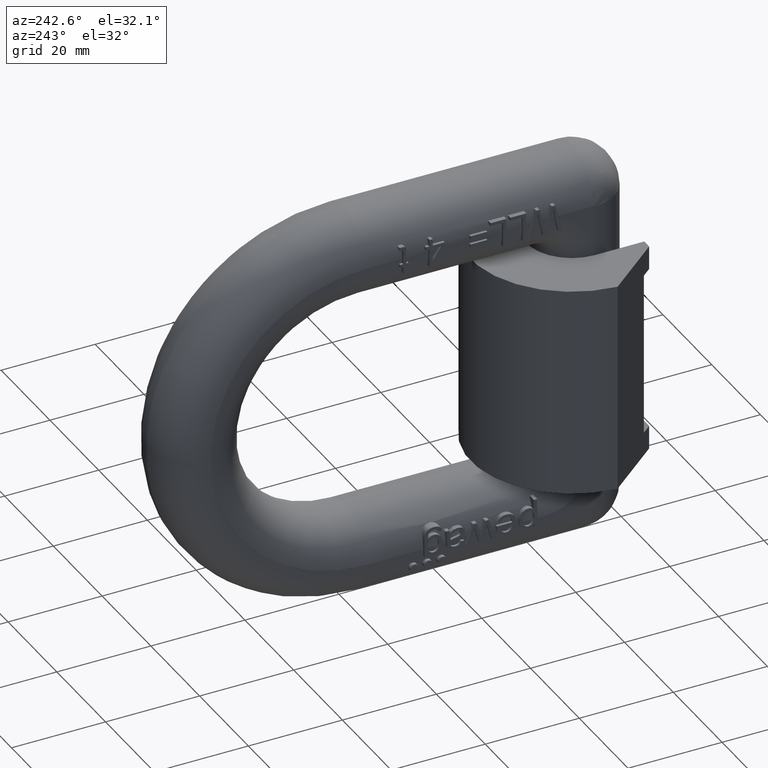
[diagram: clean part render]
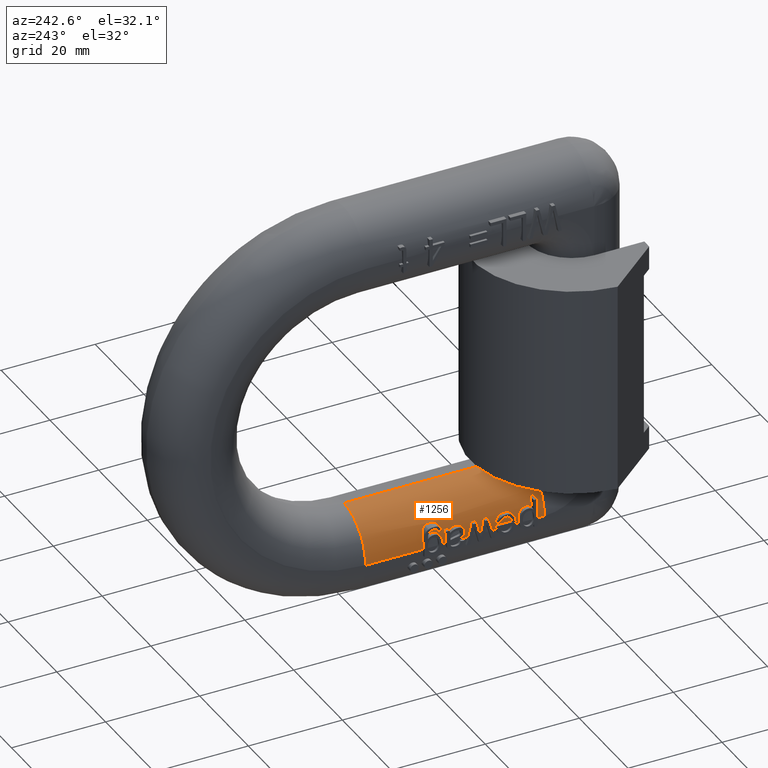
[diagram: same view with one face highlighted and labeled with its STEP entity id]
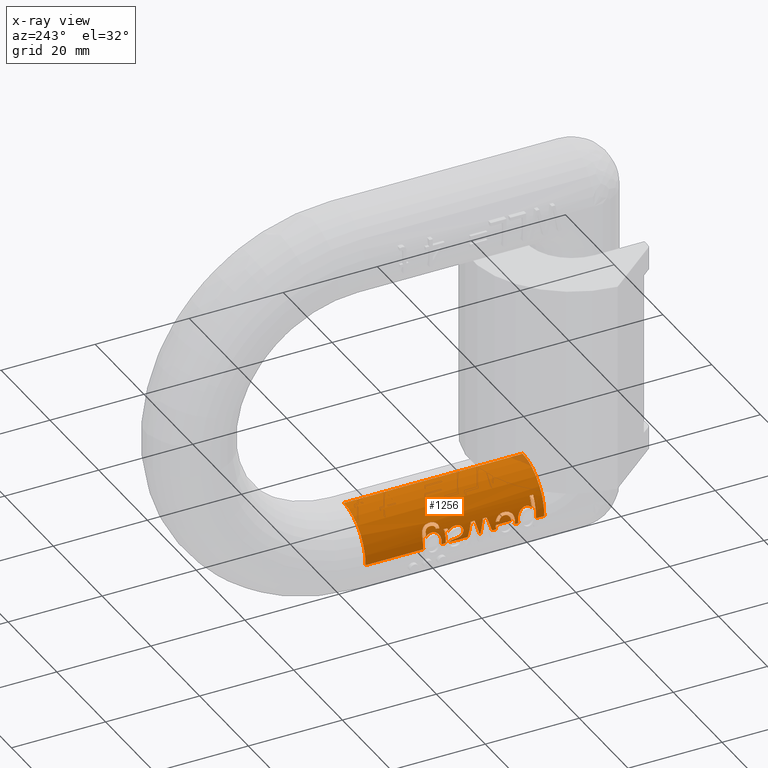
[diagram: x-ray of the same camera — body ghosted, the highlighted face saturated]
A machine part, auxiliary view. The second image highlights one B-rep face of the part: STEP entity #1256.
The next image is the same camera in x-ray: the body ghosted, the highlighted face saturated — about 1% of this face is hidden behind the body in this view.
In plain terms, the highlighted cylindrical surface (partial cylindrical patch) has radius 8.9 mm, axis along (0, -1, -0).
Its self-contained STEP definition (entity closure, byte-faithful):
#235=ELLIPSE('',#8851,61.93348202659,8.9);
#236=ELLIPSE('',#8852,9.33908652959196,8.9);
#237=ELLIPSE('',#8853,9.21864043009322,8.9);
#238=ELLIPSE('',#8854,9.13680175470735,8.9);
#239=ELLIPSE('',#8855,9.21336288679364,8.9);
#240=ELLIPSE('',#8856,9.32180664504699,8.9);
#241=ELLIPSE('',#8857,74.1699170217813,8.9);
#332=B_SPLINE_CURVE_WITH_KNOTS('',3,(#12089,#12090,#12091,#12092,#12093,
#12094,#12095,#12096),.UNSPECIFIED.,.F.,.F.,(4,2,2,4),(0.,0.250000000000001,
0.500000000000002,1.),.UNSPECIFIED.);
#333=B_SPLINE_CURVE_WITH_KNOTS('',3,(#12098,#12099,#12100,#12101,#12102,
#12103,#12104,#12105,#12106,#12107,#12108,#12109,#12110),.UNSPECIFIED.,
 .F.,.F.,(4,3,3,3,4),(0.,0.248697880491787,0.494178364665057,0.791736109064426,
1.),.UNSPECIFIED.);
#334=B_SPLINE_CURVE_WITH_KNOTS('',3,(#12112,#12113,#12114,#12115,#12116,
#12117,#12118,#12119,#12120,#12121),.UNSPECIFIED.,.F.,.F.,(4,3,3,4),(0.,
0.430337284255991,0.754018457427919,1.),.UNSPECIFIED.);
#335=B_SPLINE_CURVE_WITH_KNOTS('',3,(#12125,#12126,#12127,#12128,#12129,
#12130,#12131,#12132,#12133,#12134),.UNSPECIFIED.,.F.,.F.,(4,3,3,4),(0.,
0.274135948176124,0.674560147402993,1.),.UNSPECIFIED.);
#336=B_SPLINE_CURVE_WITH_KNOTS('',3,(#12136,#12137,#12138,#12139,#12140,
#12141,#12142,#12143,#12144,#12145,#12146,#12147,#12148,#12149,#12150,#12151,
#12152,#12153,#12154),.UNSPECIFIED.,.F.,.F.,(4,3,3,3,3,3,4),(0.,0.168858614757021,
0.307700460090712,0.447905580202655,0.646046400404949,0.866531902761358,
1.),.UNSPECIFIED.);
#337=B_SPLINE_CURVE_WITH_KNOTS('',3,(#12156,#12157,#12158,#12159,#12160,
#12161,#12162,#12163,#12164,#12165),.UNSPECIFIED.,.F.,.F.,(4,3,3,4),(0.,
0.360395097083407,0.678916789615652,1.),.UNSPECIFIED.);
#338=B_SPLINE_CURVE_WITH_KNOTS('',3,(#12167,#12168,#12169,#12170,#12171,
#12172,#12173,#12174,#12175,#12176,#12177,#12178,#12179,#12180,#12181,#12182,
#12183,#12184,#12185,#12186,#12187,#12188,#12189,#12190,#12191,#12192,#12193,
#12194),.UNSPECIFIED.,.F.,.F.,(4,3,3,3,3,3,3,3,3,4),(0.,0.178485455822983,
0.359186002753661,0.486417113436246,0.584802376793435,0.68298578796122,
0.787826060058585,0.879032056485584,0.9699001153783,1.),.UNSPECIFIED.);
#339=B_SPLINE_CURVE_WITH_KNOTS('',3,(#12198,#12199,#12200,#12201,#12202,
#12203,#12204),.UNSPECIFIED.,.F.,.F.,(4,3,4),(0.,0.421624354735253,1.),
 .UNSPECIFIED.);
#340=B_SPLINE_CURVE_WITH_KNOTS('',3,(#12206,#12207,#12208,#12209,#12210,
#12211,#12212,#12213,#12214,#12215),.UNSPECIFIED.,.F.,.F.,(4,3,3,4),(0.,
0.493631060329936,0.745840350518706,1.),.UNSPECIFIED.);
#341=B_SPLINE_CURVE_WITH_KNOTS('',3,(#12219,#12220,#12221,#12222,#12223,
#12224,#12225,#12226,#12227,#12228),.UNSPECIFIED.,.F.,.F.,(4,3,3,4),(0.,
0.263864271548027,0.52782859241689,1.),.UNSPECIFIED.);
#342=B_SPLINE_CURVE_WITH_KNOTS('',3,(#12230,#12231,#12232,#12233,#12234,
#12235,#12236,#12237,#12238,#12239),.UNSPECIFIED.,.F.,.F.,(4,3,3,4),(0.,
0.284756469951146,0.569036882238634,1.),.UNSPECIFIED.);
#343=B_SPLINE_CURVE_WITH_KNOTS('',3,(#12241,#12242,#12243,#12244,#12245,
#12246,#12247,#12248,#12249,#12250,#12251,#12252,#12253,#12254,#12255,#12256,
#12257,#12258,#12259,#12260,#12261,#12262,#12263,#12264,#12265),
 .UNSPECIFIED.,.F.,.F.,(4,3,3,3,3,3,3,3,4),(0.,0.108008235614619,0.215256218109179,
0.339019673596074,0.448275732337749,0.561639631039315,0.711834015155023,
0.937060876466547,1.),.UNSPECIFIED.);
#344=B_SPLINE_CURVE_WITH_KNOTS('',3,(#12267,#12268,#12269,#12270,#12271,
#12272,#12273,#12274,#12275,#12276),.UNSPECIFIED.,.F.,.F.,(4,3,3,4),(0.,
0.261001662313728,0.522016043196753,1.),.UNSPECIFIED.);
#345=B_SPLINE_CURVE_WITH_KNOTS('',3,(#12278,#12279,#12280,#12281,#12282,
#12283,#12284,#12285,#12286,#12287),.UNSPECIFIED.,.F.,.F.,(4,3,3,4),(0.,
0.26200340298952,0.524078096755876,1.),.UNSPECIFIED.);
#346=B_SPLINE_CURVE_WITH_KNOTS('',3,(#12289,#12290,#12291,#12292,#12293,
#12294,#12295,#12296,#12297,#12298),.UNSPECIFIED.,.F.,.F.,(4,3,3,4),(0.,
0.331326683257196,0.665237069001684,1.),.UNSPECIFIED.);
#347=B_SPLINE_CURVE_WITH_KNOTS('',3,(#12300,#12301,#12302,#12303,#12304,
#12305,#12306,#12307,#12308,#12309),.UNSPECIFIED.,.F.,.F.,(4,3,3,4),(0.,
0.336122544874488,0.667728324385305,1.),.UNSPECIFIED.);
#348=B_SPLINE_CURVE_WITH_KNOTS('',3,(#12311,#12312,#12313,#12314),
 .UNSPECIFIED.,.F.,.F.,(4,4),(0.,1.),.UNSPECIFIED.);
#349=B_SPLINE_CURVE_WITH_KNOTS('',3,(#12330,#12331,#12332,#12333),
 .UNSPECIFIED.,.F.,.F.,(4,4),(0.,1.),.UNSPECIFIED.);
#350=B_SPLINE_CURVE_WITH_KNOTS('',3,(#12337,#12338,#12339,#12340,#12341,
#12342,#12343,#12344,#12345,#12346),.UNSPECIFIED.,.F.,.F.,(4,3,3,4),(0.,
0.299775730212566,0.754084692678847,1.),.UNSPECIFIED.);
#351=B_SPLINE_CURVE_WITH_KNOTS('',3,(#12348,#12349,#12350,#12351,#12352,
#12353,#12354,#12355,#12356,#12357,#12358,#12359,#12360,#12361,#12362,#12363),
 .UNSPECIFIED.,.F.,.F.,(4,3,3,3,3,4),(0.,0.211617103165979,0.421673840282327,
0.664731961057905,0.916767024037148,1.),.UNSPECIFIED.);
#352=B_SPLINE_CURVE_WITH_KNOTS('',3,(#12365,#12366,#12367,#12368,#12369,
#12370,#12371,#12372,#12373,#12374),.UNSPECIFIED.,.F.,.F.,(4,3,3,4),(0.,
0.294034769433422,0.588696196756027,1.),.UNSPECIFIED.);
#353=B_SPLINE_CURVE_WITH_KNOTS('',3,(#12378,#12379,#12380,#12381,#12382,
#12383,#12384,#12385,#12386,#12387),.UNSPECIFIED.,.F.,.F.,(4,3,3,4),(0.,
0.269830830133682,0.756390291648704,1.),.UNSPECIFIED.);
#354=B_SPLINE_CURVE_WITH_KNOTS('',3,(#12389,#12390,#12391,#12392,#12393,
#12394,#12395,#12396,#12397,#12398,#12399,#12400,#12401,#12402,#12403,#12404),
 .UNSPECIFIED.,.F.,.F.,(4,3,3,3,3,4),(0.,0.208070152032161,0.415661220403148,
0.713003631775161,0.915949178629303,1.),.UNSPECIFIED.);
#355=B_SPLINE_CURVE_WITH_KNOTS('',3,(#12406,#12407,#12408,#12409,#12410,
#12411,#12412,#12413,#12414,#12415,#12416,#12417,#12418),.UNSPECIFIED.,
 .F.,.F.,(4,3,3,3,4),(0.,0.359290445480422,0.691721797651223,0.947044335466171,
1.),.UNSPECIFIED.);
#356=B_SPLINE_CURVE_WITH_KNOTS('',3,(#12419,#12420,#12421,#12422,#12423,
#12424,#12425,#12426,#12427,#12428,#12429,#12430,#12431),.UNSPECIFIED.,
 .F.,.F.,(4,3,3,3,4),(0.,0.205453920719586,0.409479874008295,0.709159499343931,
1.),.UNSPECIFIED.);
#357=B_SPLINE_CURVE_WITH_KNOTS('',3,(#12433,#12434,#12435,#12436,#12437,
#12438,#12439,#12440,#12441,#12442,#12443,#12444,#12445),.UNSPECIFIED.,
 .F.,.F.,(4,3,3,3,4),(0.,0.27546270381724,0.548212343231061,0.864404932752127,
1.),.UNSPECIFIED.);
#358=B_SPLINE_CURVE_WITH_KNOTS('',3,(#12447,#12448,#12449,#12450,#12451,
#12452,#12453,#12454,#12455,#12456),.UNSPECIFIED.,.F.,.F.,(4,3,3,4),(0.,
0.26158096952331,0.523120782220585,1.),.UNSPECIFIED.);
#1256=ADVANCED_FACE('',(#1769),#1677,.T.);
#1677=CYLINDRICAL_SURFACE('',#8859,8.9);
#1769=FACE_OUTER_BOUND('',#2213,.T.);
#2213=EDGE_LOOP('',(#3142,#3143,#3144,#3145,#3146,#3147,#3148,#3149,#3150,
#3151,#3152,#3153,#3154,#3155,#3156,#3157,#3158,#3159,#3160,#3161,#3162,
#3163,#3164,#3165,#3166,#3167,#3168,#3169,#3170,#3171,#3172,#3173,#3174,
#3175,#3176,#3177,#3178,#3179,#3180,#3181,#3182,#3183,#3184,#3185,#3186,
#3187,#3188,#3189,#3190,#3191,#3192));
#2697=CIRCLE('',#8848,8.9);
#2698=CIRCLE('',#8849,8.9);
#2699=CIRCLE('',#8850,8.9);
#2700=CIRCLE('',#8858,8.9);
#3142=ORIENTED_EDGE('',*,*,#6453,.F.);
#3143=ORIENTED_EDGE('',*,*,#6258,.F.);
#3144=ORIENTED_EDGE('',*,*,#6454,.T.);
#3145=ORIENTED_EDGE('',*,*,#6227,.F.);
#3146=ORIENTED_EDGE('',*,*,#6455,.F.);
#3147=ORIENTED_EDGE('',*,*,#6425,.F.);
#3148=ORIENTED_EDGE('',*,*,#6456,.F.);
#3149=ORIENTED_EDGE('',*,*,#6457,.F.);
#3150=ORIENTED_EDGE('',*,*,#6458,.F.);
#3151=ORIENTED_EDGE('',*,*,#6459,.F.);
#3152=ORIENTED_EDGE('',*,*,#6460,.F.);
#3153=ORIENTED_EDGE('',*,*,#6461,.F.);
#3154=ORIENTED_EDGE('',*,*,#6462,.F.);
#3155=ORIENTED_EDGE('',*,*,#6463,.F.);
#3156=ORIENTED_EDGE('',*,*,#6464,.F.);
#3157=ORIENTED_EDGE('',*,*,#6465,.F.);
#3158=ORIENTED_EDGE('',*,*,#6466,.F.);
#3159=ORIENTED_EDGE('',*,*,#6467,.F.);
#3160=ORIENTED_EDGE('',*,*,#6468,.F.);
#3161=ORIENTED_EDGE('',*,*,#6469,.F.);
#3162=ORIENTED_EDGE('',*,*,#6470,.F.);
#3163=ORIENTED_EDGE('',*,*,#6471,.F.);
#3164=ORIENTED_EDGE('',*,*,#6472,.F.);
#3165=ORIENTED_EDGE('',*,*,#6473,.F.);
#3166=ORIENTED_EDGE('',*,*,#6474,.F.);
#3167=ORIENTED_EDGE('',*,*,#6475,.F.);
#3168=ORIENTED_EDGE('',*,*,#6444,.F.);
#3169=ORIENTED_EDGE('',*,*,#6476,.F.);
#3170=ORIENTED_EDGE('',*,*,#6477,.F.);
#3171=ORIENTED_EDGE('',*,*,#6478,.F.);
#3172=ORIENTED_EDGE('',*,*,#6479,.F.);
#3173=ORIENTED_EDGE('',*,*,#6480,.F.);
#3174=ORIENTED_EDGE('',*,*,#6481,.F.);
#3175=ORIENTED_EDGE('',*,*,#6482,.F.);
#3176=ORIENTED_EDGE('',*,*,#6483,.F.);
#3177=ORIENTED_EDGE('',*,*,#6428,.F.);
#3178=ORIENTED_EDGE('',*,*,#6484,.F.);
#3179=ORIENTED_EDGE('',*,*,#6485,.F.);
#3180=ORIENTED_EDGE('',*,*,#6486,.F.);
#3181=ORIENTED_EDGE('',*,*,#6487,.F.);
#3182=ORIENTED_EDGE('',*,*,#6488,.F.);
#3183=ORIENTED_EDGE('',*,*,#6489,.F.);
#3184=ORIENTED_EDGE('',*,*,#6490,.F.);
#3185=ORIENTED_EDGE('',*,*,#6491,.F.);
#3186=ORIENTED_EDGE('',*,*,#6492,.F.);
#3187=ORIENTED_EDGE('',*,*,#6439,.F.);
#3188=ORIENTED_EDGE('',*,*,#6493,.F.);
#3189=ORIENTED_EDGE('',*,*,#6494,.F.);
#3190=ORIENTED_EDGE('',*,*,#6495,.F.);
#3191=ORIENTED_EDGE('',*,*,#6496,.F.);
#3192=ORIENTED_EDGE('',*,*,#6497,.F.);
#5359=VERTEX_POINT('',#11082);
#5361=VERTEX_POINT('',#11088);
#5382=VERTEX_POINT('',#11150);
#5383=VERTEX_POINT('',#11152);
#5525=VERTEX_POINT('',#11920);
#5526=VERTEX_POINT('',#11922);
#5527=VERTEX_POINT('',#11939);
#5528=VERTEX_POINT('',#11941);
#5537=VERTEX_POINT('',#11993);
#5538=VERTEX_POINT('',#11995);
#5539=VERTEX_POINT('',#12020);
#5540=VERTEX_POINT('',#12022);
#5545=VERTEX_POINT('',#12086);
#5546=VERTEX_POINT('',#12097);
#5547=VERTEX_POINT('',#12111);
#5548=VERTEX_POINT('',#12122);
#5549=VERTEX_POINT('',#12124);
#5550=VERTEX_POINT('',#12135);
#5551=VERTEX_POINT('',#12155);
#5552=VERTEX_POINT('',#12166);
#5553=VERTEX_POINT('',#12195);
#5554=VERTEX_POINT('',#12197);
#5555=VERTEX_POINT('',#12205);
#5556=VERTEX_POINT('',#12216);
#5557=VERTEX_POINT('',#12218);
#5558=VERTEX_POINT('',#12229);
#5559=VERTEX_POINT('',#12240);
#5560=VERTEX_POINT('',#12266);
#5561=VERTEX_POINT('',#12277);
#5562=VERTEX_POINT('',#12288);
#5563=VERTEX_POINT('',#12299);
#5564=VERTEX_POINT('',#12310);
#5565=VERTEX_POINT('',#12316);
#5566=VERTEX_POINT('',#12318);
#5567=VERTEX_POINT('',#12320);
#5568=VERTEX_POINT('',#12322);
#5569=VERTEX_POINT('',#12324);
#5570=VERTEX_POINT('',#12326);
#5571=VERTEX_POINT('',#12328);
#5572=VERTEX_POINT('',#12334);
#5573=VERTEX_POINT('',#12336);
#5574=VERTEX_POINT('',#12347);
#5575=VERTEX_POINT('',#12364);
#5576=VERTEX_POINT('',#12375);
#5577=VERTEX_POINT('',#12377);
#5578=VERTEX_POINT('',#12388);
#5579=VERTEX_POINT('',#12405);
#5580=VERTEX_POINT('',#12432);
#5581=VERTEX_POINT('',#12446);
#5582=VERTEX_POINT('',#12457);
#5583=VERTEX_POINT('',#12459);
#6227=EDGE_CURVE('',#5361,#5359,#7499,.T.);
#6258=EDGE_CURVE('',#5382,#5383,#7518,.T.);
#6425=EDGE_CURVE('',#5525,#5526,#7585,.T.);
#6428=EDGE_CURVE('',#5527,#5528,#7586,.T.);
#6439=EDGE_CURVE('',#5537,#5538,#7590,.T.);
#6444=EDGE_CURVE('',#5539,#5540,#7593,.T.);
#6453=EDGE_CURVE('',#5383,#5545,#2697,.T.);
#6454=EDGE_CURVE('',#5382,#5359,#2698,.T.);
#6455=EDGE_CURVE('',#5526,#5361,#2699,.T.);
#6456=EDGE_CURVE('',#5546,#5525,#332,.T.);
#6457=EDGE_CURVE('',#5547,#5546,#333,.T.);
#6458=EDGE_CURVE('',#5548,#5547,#334,.T.);
#6459=EDGE_CURVE('',#5549,#5548,#235,.T.);
#6460=EDGE_CURVE('',#5550,#5549,#335,.T.);
#6461=EDGE_CURVE('',#5551,#5550,#336,.T.);
#6462=EDGE_CURVE('',#5552,#5551,#337,.T.);
#6463=EDGE_CURVE('',#5553,#5552,#338,.T.);
#6464=EDGE_CURVE('',#5554,#5553,#7597,.T.);
#6465=EDGE_CURVE('',#5555,#5554,#339,.T.);
#6466=EDGE_CURVE('',#5556,#5555,#340,.T.);
#6467=EDGE_CURVE('',#5557,#5556,#7598,.T.);
#6468=EDGE_CURVE('',#5558,#5557,#341,.T.);
#6469=EDGE_CURVE('',#5559,#5558,#342,.T.);
#6470=EDGE_CURVE('',#5560,#5559,#343,.T.);
#6471=EDGE_CURVE('',#5561,#5560,#344,.T.);
#6472=EDGE_CURVE('',#5562,#5561,#345,.T.);
#6473=EDGE_CURVE('',#5563,#5562,#346,.T.);
#6474=EDGE_CURVE('',#5564,#5563,#347,.T.);
#6475=EDGE_CURVE('',#5540,#5564,#348,.T.);
#6476=EDGE_CURVE('',#5565,#5539,#236,.T.);
#6477=EDGE_CURVE('',#5566,#5565,#7599,.T.);
#6478=EDGE_CURVE('',#5567,#5566,#237,.T.);
#6479=EDGE_CURVE('',#5568,#5567,#238,.T.);
#6480=EDGE_CURVE('',#5569,#5568,#7600,.T.);
#6481=EDGE_CURVE('',#5570,#5569,#239,.T.);
#6482=EDGE_CURVE('',#5571,#5570,#7601,.T.);
#6483=EDGE_CURVE('',#5528,#5571,#240,.T.);
#6484=EDGE_CURVE('',#5572,#5527,#349,.T.);
#6485=EDGE_CURVE('',#5573,#5572,#7602,.T.);
#6486=EDGE_CURVE('',#5574,#5573,#350,.T.);
#6487=EDGE_CURVE('',#5575,#5574,#351,.T.);
#6488=EDGE_CURVE('',#5576,#5575,#352,.T.);
#6489=EDGE_CURVE('',#5577,#5576,#241,.T.);
#6490=EDGE_CURVE('',#5578,#5577,#353,.T.);
#6491=EDGE_CURVE('',#5579,#5578,#354,.T.);
#6492=EDGE_CURVE('',#5538,#5579,#355,.T.);
#6493=EDGE_CURVE('',#5580,#5537,#356,.T.);
#6494=EDGE_CURVE('',#5581,#5580,#357,.T.);
#6495=EDGE_CURVE('',#5582,#5581,#358,.T.);
#6496=EDGE_CURVE('',#5583,#5582,#2700,.T.);
#6497=EDGE_CURVE('',#5545,#5583,#7603,.T.);
#7499=LINE('',#11089,#8067);
#7518=LINE('',#11151,#8086);
#7585=LINE('',#11921,#8153);
#7586=LINE('',#11940,#8154);
#7590=LINE('',#11994,#8158);
#7593=LINE('',#12021,#8161);
#7597=LINE('',#12196,#8165);
#7598=LINE('',#12217,#8166);
#7599=LINE('',#12317,#8167);
#7600=LINE('',#12323,#8168);
#7601=LINE('',#12327,#8169);
#7602=LINE('',#12335,#8170);
#7603=LINE('',#12460,#8171);
#8067=VECTOR('',#9338,1.);
#8086=VECTOR('',#9401,1.);
#8153=VECTOR('',#9616,1.);
#8154=VECTOR('',#9621,1.);
#8158=VECTOR('',#9637,1.);
#8161=VECTOR('',#9644,1.);
#8165=VECTOR('',#9662,1.);
#8166=VECTOR('',#9663,1.);
#8167=VECTOR('',#9666,1.);
#8168=VECTOR('',#9671,1.);
#8169=VECTOR('',#9674,1.);
#8170=VECTOR('',#9677,1.);
#8171=VECTOR('',#9682,1.);
#8848=AXIS2_PLACEMENT_3D('',#12085,#9654,#9655);
#8849=AXIS2_PLACEMENT_3D('',#12087,#9656,#9657);
#8850=AXIS2_PLACEMENT_3D('',#12088,#9658,#9659);
#8851=AXIS2_PLACEMENT_3D('',#12123,#9660,#9661);
#8852=AXIS2_PLACEMENT_3D('',#12315,#9664,#9665);
#8853=AXIS2_PLACEMENT_3D('',#12319,#9667,#9668);
#8854=AXIS2_PLACEMENT_3D('',#12321,#9669,#9670);
#8855=AXIS2_PLACEMENT_3D('',#12325,#9672,#9673);
#8856=AXIS2_PLACEMENT_3D('',#12329,#9675,#9676);
#8857=AXIS2_PLACEMENT_3D('',#12376,#9678,#9679);
#8858=AXIS2_PLACEMENT_3D('',#12458,#9680,#9681);
#8859=AXIS2_PLACEMENT_3D('',#12461,#9683,#9684);
#9338=DIRECTION('',(0.,-1.,-5.4780741346636E-16));
#9401=DIRECTION('',(0.,1.,5.4780741346636E-16));
#9616=DIRECTION('',(0.,1.,5.4780741346636E-16));
#9621=DIRECTION('',(0.,1.,5.4780741346636E-16));
#9637=DIRECTION('',(0.,1.,5.4780741346636E-16));
#9644=DIRECTION('',(0.,1.,5.4780741346636E-16));
#9654=DIRECTION('',(0.,1.,0.));
#9655=DIRECTION('',(0.,0.,-1.));
#9656=DIRECTION('',(0.,1.,3.89825500219507E-16));
#9657=DIRECTION('',(0.,-3.89825500219507E-16,1.));
#9658=DIRECTION('',(0.,1.,7.79651000439015E-16));
#9659=DIRECTION('',(0.,-7.79651000439014E-16,1.));
#9660=DIRECTION('',(0.,-0.143702561341198,0.989620924326067));
#9661=DIRECTION('',(0.,-0.989620924326067,-0.143702561341198));
#9662=DIRECTION('',(0.,1.,5.4780741346636E-16));
#9663=DIRECTION('',(0.,1.,5.4780741346636E-16));
#9664=DIRECTION('',(0.,-0.952983996004248,-0.303020631904455));
#9665=DIRECTION('',(0.,-0.303020631904455,0.952983996004248));
#9666=DIRECTION('',(0.,1.,5.4780741346636E-16));
#9667=DIRECTION('',(0.,0.96543520354118,-0.260643180926338));
#9668=DIRECTION('',(0.,-0.260643180926338,-0.96543520354118));
#9669=DIRECTION('',(0.,0.97408264280383,-0.226192407008517));
#9670=DIRECTION('',(0.,-0.226192407008517,-0.97408264280383));
#9671=DIRECTION('',(0.,1.,5.4780741346636E-16));
#9672=DIRECTION('',(0.,-0.9659882183472,-0.25858608240662));
#9673=DIRECTION('',(0.,-0.25858608240662,0.9659882183472));
#9674=DIRECTION('',(0.,1.,5.4780741346636E-16));
#9675=DIRECTION('',(0.,0.954750547709428,-0.297407786798778));
#9676=DIRECTION('',(0.,-0.297407786798778,-0.954750547709428));
#9677=DIRECTION('',(0.,1.,5.4780741346636E-16));
#9678=DIRECTION('',(0.,-0.119994741228932,0.992774527310911));
#9679=DIRECTION('',(0.,-0.99277452731091,-0.119994741228932));
#9680=DIRECTION('',(0.,-1.,0.));
#9681=DIRECTION('',(0.,0.,1.));
#9682=DIRECTION('',(0.,1.,5.4780741346636E-16));
#9683=DIRECTION('',(0.,-1.,-5.4780741346636E-16));
#9684=DIRECTION('',(0.,5.84738250329261E-16,-1.));
#11082=CARTESIAN_POINT('',(-0.100000000000001,21.,-24.));
#11088=CARTESIAN_POINT('',(-0.100000000000001,59.,-24.));
#11089=CARTESIAN_POINT('',(-0.100000000000001,21.,-24.));
#11150=CARTESIAN_POINT('',(-9.,21.,-32.9));
#11151=CARTESIAN_POINT('',(-9.,59.,-32.9));
#11152=CARTESIAN_POINT('',(-9.,22.75,-32.9));
#11920=CARTESIAN_POINT('',(-9.,46.75,-32.9));
#11921=CARTESIAN_POINT('',(-9.,59.,-32.9));
#11922=CARTESIAN_POINT('',(-9.,59.,-32.9));
#11939=CARTESIAN_POINT('',(-9.,31.2468319260731,-32.9));
#11940=CARTESIAN_POINT('',(-9.,59.,-32.9));
#11941=CARTESIAN_POINT('',(-9.,32.1497579834843,-32.9));
#11993=CARTESIAN_POINT('',(-9.,26.5136770267991,-32.9));
#11994=CARTESIAN_POINT('',(-9.,59.,-32.9));
#11995=CARTESIAN_POINT('',(-9.,27.3266492809397,-32.9));
#12020=CARTESIAN_POINT('',(-9.,37.3065253465218,-32.9));
#12021=CARTESIAN_POINT('',(-9.,59.,-32.9));
#12022=CARTESIAN_POINT('',(-9.,41.2236328547522,-32.9));
#12085=CARTESIAN_POINT('',(-0.100000000000001,22.75,-32.9));
#12086=CARTESIAN_POINT('',(-7.73984531006271,22.75,-28.3346124328473));
#12087=CARTESIAN_POINT('',(-0.100000000000001,21.,-32.9));
#12088=CARTESIAN_POINT('',(-0.100000000000001,59.,-32.9));
#12089=CARTESIAN_POINT('',(-7.82599275563669,45.8738367931281,-28.4819646968534));
#12090=CARTESIAN_POINT('',(-7.93425511518897,46.226398417202,-28.6712873591267));
#12091=CARTESIAN_POINT('',(-8.0952021166554,46.4958521907859,-28.970100791827));
#12092=CARTESIAN_POINT('',(-8.41313086833815,46.7275387297007,-29.6969983080783));
#12093=CARTESIAN_POINT('',(-8.55434720162143,46.7449011313298,-30.0890517639674));
#12094=CARTESIAN_POINT('',(-8.88772466967054,46.7584000489846,-31.2704106360993));
#12095=CARTESIAN_POINT('',(-9.00000000000001,46.75,-32.0760563222305));
#12096=CARTESIAN_POINT('',(-9.,46.75,-32.9));
#12097=CARTESIAN_POINT('',(-7.82599275563669,45.8738367931281,-28.4819646968534));
#12098=CARTESIAN_POINT('',(-7.8847498772187,43.4718064684063,-28.5863392171911));
#12099=CARTESIAN_POINT('',(-7.82043194765902,43.6334234704433,-28.470266345574));
#12100=CARTESIAN_POINT('',(-7.76873273648156,43.8244594926857,-28.3828385770171));
#12101=CARTESIAN_POINT('',(-7.73539861394085,44.0232575260428,-28.3271794255372));
#12102=CARTESIAN_POINT('',(-7.70230896243686,44.2205975830799,-28.2719284759066));
#12103=CARTESIAN_POINT('',(-7.68564048227224,44.4298267724662,-28.2450968406505));
#12104=CARTESIAN_POINT('',(-7.68141916875733,44.6372532446776,-28.238231731671));
#12105=CARTESIAN_POINT('',(-7.67630927798959,44.8883425351537,-28.2299215322817));
#12106=CARTESIAN_POINT('',(-7.6871439873953,45.1445525242363,-28.2471020410523));
#12107=CARTESIAN_POINT('',(-7.720673394119,45.3873028081511,-28.3026815402708));
#12108=CARTESIAN_POINT('',(-7.74420703195182,45.5576845065969,-28.3416917087572));
#12109=CARTESIAN_POINT('',(-7.77979323960763,45.7240236399292,-28.401173779248));
#12110=CARTESIAN_POINT('',(-7.82599275563669,45.8738367931281,-28.4819646968534));
#12111=CARTESIAN_POINT('',(-7.8847498772187,43.4718064684063,-28.5863392171911));
#12112=CARTESIAN_POINT('',(-8.38117117146848,43.0017082058958,-29.6392939370683));
#12113=CARTESIAN_POINT('',(-8.31315641059969,42.9976743715705,-29.4665577670271));
#12114=CARTESIAN_POINT('',(-8.23804208812973,43.016366813139,-29.2925198322548));
#12115=CARTESIAN_POINT('',(-8.16271927409067,43.0696385233627,-29.1313718799533));
#12116=CARTESIAN_POINT('',(-8.10596276822189,43.1097792984057,-29.0099452601804));
#12117=CARTESIAN_POINT('',(-8.04803603420613,43.1711056563119,-28.8935436998516));
#12118=CARTESIAN_POINT('',(-7.9954782323052,43.2523960046403,-28.7925161615419));
#12119=CARTESIAN_POINT('',(-7.9553109027409,43.314522198918,-28.7153058087572));
#12120=CARTESIAN_POINT('',(-7.91763900874822,43.3891632167689,-28.6456933656806));
#12121=CARTESIAN_POINT('',(-7.8847498772187,43.4718064684063,-28.5863392171911));
#12122=CARTESIAN_POINT('',(-8.38117117146848,43.0017082058958,-29.6392939370683));
#12123=CARTESIAN_POINT('',(-0.100000000000001,20.5465555778752,-32.9));
#12124=CARTESIAN_POINT('',(-8.33868315066635,43.7310633174986,-29.5333844973139));
#12125=CARTESIAN_POINT('',(-8.1241269662677,43.9840730136006,-29.0498848810437));
#12126=CARTESIAN_POINT('',(-8.13904519003437,43.9414127204535,-29.0809763466016));
#12127=CARTESIAN_POINT('',(-8.15670491385819,43.9036159554051,-29.1182632572767));
#12128=CARTESIAN_POINT('',(-8.17562819269813,43.8722747207083,-29.1591138358273));
#12129=CARTESIAN_POINT('',(-8.2031393587712,43.8267100001348,-29.218503493412));
#12130=CARTESIAN_POINT('',(-8.23384583207792,43.79353683063,-29.2866384190337));
#12131=CARTESIAN_POINT('',(-8.26424433395472,43.7705106578445,-29.3566803057742));
#12132=CARTESIAN_POINT('',(-8.28911683351908,43.751670305945,-29.4139896035975));
#12133=CARTESIAN_POINT('',(-8.31418824019786,43.7391109441008,-29.4734412676838));
#12134=CARTESIAN_POINT('',(-8.33868315066635,43.7310633174986,-29.5333844973139));
#12135=CARTESIAN_POINT('',(-8.1241269662677,43.9840730136006,-29.0498848810437));
#12136=CARTESIAN_POINT('',(-8.3751109933604,45.9331847465348,-29.623944742901));
#12137=CARTESIAN_POINT('',(-8.326764080666,45.9005667536313,-29.5018234606468));
#12138=CARTESIAN_POINT('',(-8.27639617664604,45.8491138728184,-29.382961180254));
#12139=CARTESIAN_POINT('',(-8.22997496374989,45.7763232969479,-29.278742333277));
#12140=CARTESIAN_POINT('',(-8.19173232717946,45.7163571012133,-29.192884958166));
#12141=CARTESIAN_POINT('',(-8.15552188368557,45.640408520641,-29.115362860315));
#12142=CARTESIAN_POINT('',(-8.12522381380665,45.5536973038145,-29.0521716854425));
#12143=CARTESIAN_POINT('',(-8.09477175017992,45.4665453663312,-28.9886593334822));
#12144=CARTESIAN_POINT('',(-8.0713173124091,45.3635040589385,-28.9415479199197));
#12145=CARTESIAN_POINT('',(-8.05551435725916,45.2571365740912,-28.910038682964));
#12146=CARTESIAN_POINT('',(-8.03317426513794,45.1067685329465,-28.8654951624908));
#12147=CARTESIAN_POINT('',(-8.02437654020269,44.9457346962613,-28.8485478830183));
#12148=CARTESIAN_POINT('',(-8.02310382152782,44.7873492625258,-28.8460604551509));
#12149=CARTESIAN_POINT('',(-8.02169208053512,44.611662982545,-28.843301319172));
#12150=CARTESIAN_POINT('',(-8.02983406711496,44.4310471303498,-28.8588232171744));
#12151=CARTESIAN_POINT('',(-8.05588574660957,44.2652244757103,-28.9107792757364));
#12152=CARTESIAN_POINT('',(-8.07175075010932,44.1642414662756,-28.9424195794292));
#12153=CARTESIAN_POINT('',(-8.09487669354559,44.0670098607672,-28.9889236123885));
#12154=CARTESIAN_POINT('',(-8.1241269662677,43.9840730136006,-29.0498848810437));
#12155=CARTESIAN_POINT('',(-8.3751109933604,45.9331847465348,-29.623944742901));
#12156=CARTESIAN_POINT('',(-8.6894447134781,45.9878473351988,-30.5694551036071));
#12157=CARTESIAN_POINT('',(-8.65798473999283,45.9886011908517,-30.4535063813329));
#12158=CARTESIAN_POINT('',(-8.62416263070928,45.9882002893477,-30.3381491051016));
#12159=CARTESIAN_POINT('',(-8.58804043497218,45.985783275684,-30.223590170718));
#12160=CARTESIAN_POINT('',(-8.55611662069415,45.9836471847368,-30.1223460998489));
#12161=CARTESIAN_POINT('',(-8.52236756642983,45.9800516068445,-30.0216410206387));
#12162=CARTESIAN_POINT('',(-8.48691287913283,45.9731077916244,-29.9217971261454));
#12163=CARTESIAN_POINT('',(-8.45122431523896,45.9661181715758,-29.8212946121001));
#12164=CARTESIAN_POINT('',(-8.41333319910784,45.9585035513104,-29.7204916476841));
#12165=CARTESIAN_POINT('',(-8.3751109933604,45.9331847465348,-29.623944742901));
#12166=CARTESIAN_POINT('',(-8.6894447134781,45.9878473351988,-30.5694551036071));
#12167=CARTESIAN_POINT('',(-9.,42.9321270263205,-32.9));
#12168=CARTESIAN_POINT('',(-9.,42.8572807110022,-32.588512917242));
#12169=CARTESIAN_POINT('',(-8.98271965432536,42.8357800274288,-32.2602954179974));
#12170=CARTESIAN_POINT('',(-8.948385403954,42.8621573674862,-31.9428815417653));
#12171=CARTESIAN_POINT('',(-8.91378013553114,42.8887429175738,-31.622962153127));
#12172=CARTESIAN_POINT('',(-8.8603072299356,42.9724593258448,-31.3028747692758));
#12173=CARTESIAN_POINT('',(-8.79915917918319,43.1155011582756,-31.0199389437486));
#12174=CARTESIAN_POINT('',(-8.75570688865219,43.2171478205058,-30.8188824989208));
#12175=CARTESIAN_POINT('',(-8.70679802774754,43.3464899648683,-30.6284404654643));
#12176=CARTESIAN_POINT('',(-8.66198055872756,43.5067673186117,-30.470496159301));
#12177=CARTESIAN_POINT('',(-8.62729962840732,43.6307941291085,-30.3482747220733));
#12178=CARTESIAN_POINT('',(-8.59502645493888,43.7776551602073,-30.2446749669502));
#12179=CARTESIAN_POINT('',(-8.57082023714542,43.9367085949873,-30.1695779611995));
#12180=CARTESIAN_POINT('',(-8.54662899376621,44.0956636363694,-30.0945274118462));
#12181=CARTESIAN_POINT('',(-8.52999352280355,44.270057974836,-30.0459004068942));
#12182=CARTESIAN_POINT('',(-8.52158833775285,44.4455835413717,-30.0213110849878));
#12183=CARTESIAN_POINT('',(-8.51259926260842,44.6333024907872,-29.9950135958743));
#12184=CARTESIAN_POINT('',(-8.51103057685684,44.8272951959268,-29.9904652117088));
#12185=CARTESIAN_POINT('',(-8.52034977812446,45.0148657593901,-30.0176902293405));
#12186=CARTESIAN_POINT('',(-8.52844468031889,45.1777944613449,-30.0413385923966));
#12187=CARTESIAN_POINT('',(-8.54558668679198,45.3388961355603,-30.0914199918061));
#12188=CARTESIAN_POINT('',(-8.5694972480851,45.4842040427555,-30.1654769401815));
#12189=CARTESIAN_POINT('',(-8.59336987329095,45.6292814069122,-30.2394163910702));
#12190=CARTESIAN_POINT('',(-8.6241845519224,45.762024669088,-30.338343221927));
#12191=CARTESIAN_POINT('',(-8.65651442912304,45.8772490690341,-30.451314470127));
#12192=CARTESIAN_POINT('',(-8.66732863043857,45.9157911225577,-30.4891028543303));
#12193=CARTESIAN_POINT('',(-8.6783609247599,45.9526507898761,-30.5286047468694));
#12194=CARTESIAN_POINT('',(-8.6894447134781,45.9878473351988,-30.5694551036071));
#12195=CARTESIAN_POINT('',(-9.,42.9321270263205,-32.9));
#12196=CARTESIAN_POINT('',(-9.,59.,-32.9));
#12197=CARTESIAN_POINT('',(-9.,41.9767949007746,-32.9));
#12198=CARTESIAN_POINT('',(-8.67639260280217,42.0255905511811,-30.5218726016884));
#12199=CARTESIAN_POINT('',(-8.7654574962451,41.9674271294866,-30.8430730108152));
#12200=CARTESIAN_POINT('',(-8.83849545066621,41.9811487258369,-31.1786125349601));
#12201=CARTESIAN_POINT('',(-8.89123083064599,41.9783746349762,-31.5128228367294));
#12202=CARTESIAN_POINT('',(-8.96351933832211,41.974571971782,-31.9709510226673));
#12203=CARTESIAN_POINT('',(-9.,41.9806026607569,-32.4362036823086));
#12204=CARTESIAN_POINT('',(-9.,41.9767949007746,-32.9));
#12205=CARTESIAN_POINT('',(-8.67639260280217,42.0255905511811,-30.5218726016884));
#12206=CARTESIAN_POINT('',(-8.514273587185,42.2145669291339,-29.9999999999998));
#12207=CARTESIAN_POINT('',(-8.54169290964578,42.1695952176921,-30.0795564416413));
#12208=CARTESIAN_POINT('',(-8.5691314186352,42.1305953973119,-30.1628633169625));
#12209=CARTESIAN_POINT('',(-8.59594827179592,42.0989837896043,-30.2487997127768));
#12210=CARTESIAN_POINT('',(-8.60968029468049,42.0827965316193,-30.2928048966389));
#12211=CARTESIAN_POINT('',(-8.6232820385443,42.0685010002413,-30.3375986753483));
#12212=CARTESIAN_POINT('',(-8.63665897914215,42.0562619303557,-30.3829673276194));
#12213=CARTESIAN_POINT('',(-8.65013848424569,42.0439290203172,-30.428683833225));
#12214=CARTESIAN_POINT('',(-8.66341551442431,42.0336616257224,-30.4750724997053));
#12215=CARTESIAN_POINT('',(-8.67639260280217,42.0255905511811,-30.5218726016884));
#12216=CARTESIAN_POINT('',(-8.514273587185,42.2145669291339,-29.9999999999998));
#12217=CARTESIAN_POINT('',(-8.514273587185,10.5,-29.9999999999999));
#12218=CARTESIAN_POINT('',(-8.514273587185,41.4321110171146,-29.9999999999998));
#12219=CARTESIAN_POINT('',(-8.68021115438059,41.2821793453504,-30.535686876439));
#12220=CARTESIAN_POINT('',(-8.66663847903337,41.2874549398787,-30.4864309554493));
#12221=CARTESIAN_POINT('',(-8.65267736137353,41.2944917299687,-30.4374268757338));
#12222=CARTESIAN_POINT('',(-8.63841181582583,41.3035335802322,-30.3889198213985));
#12223=CARTESIAN_POINT('',(-8.62414309519556,41.3125774429404,-30.3404019708478));
#12224=CARTESIAN_POINT('',(-8.60954494579036,41.3236440446333,-30.2922987230258));
#12225=CARTESIAN_POINT('',(-8.59474532076834,41.3369945240121,-30.2449478469755));
#12226=CARTESIAN_POINT('',(-8.56835668516813,41.3607992443946,-30.1605183420669));
#12227=CARTESIAN_POINT('',(-8.54112128618649,41.3920799579262,-30.077897891236));
#12228=CARTESIAN_POINT('',(-8.51427358718505,41.4321110171146,-30.));
#12229=CARTESIAN_POINT('',(-8.68021115438059,41.2821793453504,-30.535686876439));
#12230=CARTESIAN_POINT('',(-8.52948349952232,40.4809819743607,-30.0445126630852));
#12231=CARTESIAN_POINT('',(-8.54011096757242,40.5654202320336,-30.0758852646765));
#12232=CARTESIAN_POINT('',(-8.55262909711934,40.6474781090578,-30.1134262219542));
#12233=CARTESIAN_POINT('',(-8.56618493581015,40.7268186951768,-30.1552390572836));
#12234=CARTESIAN_POINT('',(-8.57972660901315,40.8060763725116,-30.1970081993217));
#12235=CARTESIAN_POINT('',(-8.59434977251746,40.8829194497518,-30.2431826868796));
#12236=CARTESIAN_POINT('',(-8.60944984140017,40.9574414223017,-30.2924602789805));
#12237=CARTESIAN_POINT('',(-8.63232851312513,41.070352413603,-30.3671225776646));
#12238=CARTESIAN_POINT('',(-8.65635547784962,41.1783394251416,-30.4491134273359));
#12239=CARTESIAN_POINT('',(-8.68021115438059,41.2821793453504,-30.535686876439));
#12240=CARTESIAN_POINT('',(-8.52948349952232,40.4809819743607,-30.0445126630852));
#12241=CARTESIAN_POINT('',(-8.92253729100095,38.2897930630572,-31.7283192632387));
#12242=CARTESIAN_POINT('',(-8.9072508996307,38.2250696432911,-31.6132155889377));
#12243=CARTESIAN_POINT('',(-8.88781804975106,38.1803721295944,-31.4852732949941));
#12244=CARTESIAN_POINT('',(-8.86506924143645,38.1586023046587,-31.3561213801517));
#12245=CARTESIAN_POINT('',(-8.84240551163143,38.1369138969221,-31.2274524819259));
#12246=CARTESIAN_POINT('',(-8.81598004159703,38.1360590148405,-31.0947436312323));
#12247=CARTESIAN_POINT('',(-8.78743994418578,38.1528242931508,-30.9665090597143));
#12248=CARTESIAN_POINT('',(-8.75473701802212,38.1720349374171,-30.8195703277418));
#12249=CARTESIAN_POINT('',(-8.71814166389827,38.218799338937,-30.6739563197711));
#12250=CARTESIAN_POINT('',(-8.68301472783673,38.2922385374622,-30.5458848410203));
#12251=CARTESIAN_POINT('',(-8.65184827800253,38.3573976248557,-30.4322531450853));
#12252=CARTESIAN_POINT('',(-8.62114521817209,38.4444023988829,-30.3293304320173));
#12253=CARTESIAN_POINT('',(-8.59401207459569,38.5437571151806,-30.2426029885212));
#12254=CARTESIAN_POINT('',(-8.56593468942424,38.6465694056267,-30.1528574037858));
#12255=CARTESIAN_POINT('',(-8.54191558401491,38.7682137255206,-30.0809514812005));
#12256=CARTESIAN_POINT('',(-8.52432785025143,38.8964311097734,-30.0293380081455));
#12257=CARTESIAN_POINT('',(-8.50105540882053,39.0660909195915,-29.9610420272721));
#12258=CARTESIAN_POINT('',(-8.48806084461513,39.251249627413,-29.9249905340534));
#12259=CARTESIAN_POINT('',(-8.4827913823786,39.4349459615189,-29.9102159543674));
#12260=CARTESIAN_POINT('',(-8.47491912069942,39.7093773070103,-29.888143615243));
#12261=CARTESIAN_POINT('',(-8.48209839585601,39.9924528623944,-29.9074117845775));
#12262=CARTESIAN_POINT('',(-8.50569937811443,40.2583550608608,-29.9752405287329));
#12263=CARTESIAN_POINT('',(-8.5123934539676,40.3337743576752,-29.9944791669145));
#12264=CARTESIAN_POINT('',(-8.52037826693895,40.4081971907176,-30.017633745841));
#12265=CARTESIAN_POINT('',(-8.52948349952232,40.4809819743607,-30.0445126630852));
#12266=CARTESIAN_POINT('',(-8.92253729100095,38.2897930630572,-31.7283192632387));
#12267=CARTESIAN_POINT('',(-8.96850786228712,38.677116548448,-32.1519570222563));
#12268=CARTESIAN_POINT('',(-8.96614622426945,38.635002694368,-32.1239583564702));
#12269=CARTESIAN_POINT('',(-8.96342004534931,38.5946003054369,-32.0932201020366));
#12270=CARTESIAN_POINT('',(-8.96027765504083,38.5564640331019,-32.0600715056719));
#12271=CARTESIAN_POINT('',(-8.95713513176283,38.5183261470395,-32.0269215066321));
#12272=CARTESIAN_POINT('',(-8.95356248576586,38.4822988660239,-31.9912254029204));
#12273=CARTESIAN_POINT('',(-8.94952688399923,38.4487826224337,-31.95349383025));
#12274=CARTESIAN_POINT('',(-8.94216798569788,38.3876659309744,-31.8846905086915));
#12275=CARTESIAN_POINT('',(-8.93317537660635,38.3344436295448,-31.8084220625882));
#12276=CARTESIAN_POINT('',(-8.92253729100095,38.2897930630572,-31.7283192632387));
#12277=CARTESIAN_POINT('',(-8.96850786228712,38.677116548448,-32.1519570222563));
#12278=CARTESIAN_POINT('',(-8.98563130883956,39.2159334938505,-32.3944742900998));
#12279=CARTESIAN_POINT('',(-8.98484494443981,39.1659285522209,-32.3806523538585));
#12280=CARTESIAN_POINT('',(-8.9839265262234,39.1163724268053,-32.3650637336753));
#12281=CARTESIAN_POINT('',(-8.98283836301414,39.0675377453486,-32.3475666406122));
#12282=CARTESIAN_POINT('',(-8.98175002306509,39.0186951321481,-32.3300667056658));
#12283=CARTESIAN_POINT('',(-8.980490057219,38.9704991697414,-32.3106280684307));
#12284=CARTESIAN_POINT('',(-8.97901335462648,38.9232752035378,-32.2891629936188));
#12285=CARTESIAN_POINT('',(-8.9763384011545,38.8377319716125,-32.2502803664161));
#12286=CARTESIAN_POINT('',(-8.97293661266987,38.754963912213,-32.2044625717477));
#12287=CARTESIAN_POINT('',(-8.96850786228712,38.677116548448,-32.1519570222563));
#12288=CARTESIAN_POINT('',(-8.98563130883956,39.2159334938505,-32.3944742900998));
#12289=CARTESIAN_POINT('',(-8.99122971840622,39.8828170755515,-32.5049884881044));
#12290=CARTESIAN_POINT('',(-8.99083760025907,39.8086294697338,-32.4961623845149));
#12291=CARTESIAN_POINT('',(-8.99040488967627,39.7345106389229,-32.4867088956418));
#12292=CARTESIAN_POINT('',(-8.98990868101345,39.6605294562016,-32.4762976950244));
#12293=CARTESIAN_POINT('',(-8.98940863500756,39.5859761529181,-32.4658059812044));
#12294=CARTESIAN_POINT('',(-8.98884633997238,39.5115368699055,-32.4543723742522));
#12295=CARTESIAN_POINT('',(-8.98816787627125,39.4374066826313,-32.4412279398003));
#12296=CARTESIAN_POINT('',(-8.98748791132005,39.3631124660241,-32.428054420398));
#12297=CARTESIAN_POINT('',(-8.98670610412104,39.2889785722651,-32.4133659793189));
#12298=CARTESIAN_POINT('',(-8.98563130883956,39.2159334938505,-32.3944742900998));
#12299=CARTESIAN_POINT('',(-8.99122971840622,39.8828170755515,-32.5049884881044));
#12300=CARTESIAN_POINT('',(-8.99887110772449,41.2197078154487,-32.7582501918649));
#12301=CARTESIAN_POINT('',(-8.9980812301163,41.0754365220185,-32.7086626889352));
#12302=CARTESIAN_POINT('',(-8.99716089039686,40.9263889745071,-32.6731067519631));
#12303=CARTESIAN_POINT('',(-8.99626713666306,40.7769858458597,-32.6422578165506));
#12304=CARTESIAN_POINT('',(-8.99538457501156,40.6294536264453,-32.6117951886981));
#12305=CARTESIAN_POINT('',(-8.99450928235666,40.4808081944701,-32.5866251751912));
#12306=CARTESIAN_POINT('',(-8.99366656906834,40.33182714996,-32.564299302598));
#12307=CARTESIAN_POINT('',(-8.99282203575576,40.1825243481955,-32.5419252123842));
#12308=CARTESIAN_POINT('',(-8.99200794578022,40.0327677022932,-32.5225054417805));
#12309=CARTESIAN_POINT('',(-8.99122971840622,39.8828170755515,-32.5049884881044));
#12310=CARTESIAN_POINT('',(-8.99887110772449,41.2197078154487,-32.7582501918649));
#12311=CARTESIAN_POINT('',(-9.,41.2236328547522,-32.9));
#12312=CARTESIAN_POINT('',(-9.,41.2225852242523,-32.852742066309));
#12313=CARTESIAN_POINT('',(-8.99962360961797,41.2211644233599,-32.8054912953734));
#12314=CARTESIAN_POINT('',(-8.99887110772449,41.2197078154487,-32.7582501918649));
#12315=CARTESIAN_POINT('',(-0.100000000000001,37.3065253465218,-32.9));
#12316=CARTESIAN_POINT('',(-8.51427358718504,36.3844114010542,-30.));
#12317=CARTESIAN_POINT('',(-8.51427358718504,10.5,-30.));
#12318=CARTESIAN_POINT('',(-8.51427358718505,35.60507906553,-30.));
#12319=CARTESIAN_POINT('',(-0.100000000000001,34.8221521306991,-32.9));
#12320=CARTESIAN_POINT('',(-8.99505051186354,34.9022743541355,-32.6032233307751));
#12321=CARTESIAN_POINT('',(-0.100000000000001,34.8333596376565,-32.9));
#12322=CARTESIAN_POINT('',(-9.,34.8333596376565,-32.9));
#12323=CARTESIAN_POINT('',(-9.,59.,-32.9));
#12324=CARTESIAN_POINT('',(-9.,34.6118760712421,-32.9));
#12325=CARTESIAN_POINT('',(-0.100000000000001,34.6118760712421,-32.9));
#12326=CARTESIAN_POINT('',(-8.51427358718505,33.8355729810633,-30.));
#12327=CARTESIAN_POINT('',(-8.51427358718504,10.5,-30.));
#12328=CARTESIAN_POINT('',(-8.51427358718504,33.0531170690441,-30.));
#12329=CARTESIAN_POINT('',(-0.100000000000001,32.1497579834843,-32.9));
#12330=CARTESIAN_POINT('',(-8.95280384131136,31.3164085377758,-31.9846508058327));
#12331=CARTESIAN_POINT('',(-8.98429675738462,31.3272827705194,-32.2892346850385));
#12332=CARTESIAN_POINT('',(-8.99999999999999,31.3146184928727,-32.6011917445347));
#12333=CARTESIAN_POINT('',(-9.,31.246831926073,-32.8999999999999));
#12334=CARTESIAN_POINT('',(-8.95280384131136,31.3164085377758,-31.9846508058327));
#12335=CARTESIAN_POINT('',(-8.95280384131136,10.5,-31.9846508058327));
#12336=CARTESIAN_POINT('',(-8.95280384131136,28.017911758964,-31.9846508058327));
#12337=CARTESIAN_POINT('',(-8.7697604403667,28.4302238563155,-30.888718342287));
#12338=CARTESIAN_POINT('',(-8.78955868941215,28.347072239023,-30.9740599828795));
#12339=CARTESIAN_POINT('',(-8.81105941485816,28.2765899201576,-31.0727311130932));
#12340=CARTESIAN_POINT('',(-8.83178149759632,28.2207182502697,-31.1777944727081));
#12341=CARTESIAN_POINT('',(-8.86303194369769,28.136459605495,-31.3362378540209));
#12342=CARTESIAN_POINT('',(-8.89301582228449,28.0828351648179,-31.5125294462173));
#12343=CARTESIAN_POINT('',(-8.91740645752561,28.0515521642701,-31.6903127004115));
#12344=CARTESIAN_POINT('',(-8.93072337482834,28.0344721199351,-31.7873796636337));
#12345=CARTESIAN_POINT('',(-8.94259269647607,28.0237276620451,-31.88589367271));
#12346=CARTESIAN_POINT('',(-8.95280384131136,28.017911758964,-31.9846508058327));
#12347=CARTESIAN_POINT('',(-8.7697604403667,28.4302238563155,-30.888718342287));
#12348=CARTESIAN_POINT('',(-8.72885071171296,30.0591689985033,-30.7198772064467));
#12349=CARTESIAN_POINT('',(-8.71050576779048,29.9587890093505,-30.6472685520672));
#12350=CARTESIAN_POINT('',(-8.69547738278118,29.8433197999364,-30.5915269954288));
#12351=CARTESIAN_POINT('',(-8.68606235537289,29.7232962808089,-30.557024705711));
#12352=CARTESIAN_POINT('',(-8.67668310664355,29.6037288711297,-30.5226535304652));
#12353=CARTESIAN_POINT('',(-8.67250037761164,29.4772335942104,-30.5078801638066));
#12354=CARTESIAN_POINT('',(-8.67255055793619,29.3524711054953,-30.5080600066833));
#12355=CARTESIAN_POINT('',(-8.67260845978113,29.2085107317897,-30.5082675229648));
#12356=CARTESIAN_POINT('',(-8.67838473955289,29.062181345689,-30.5286109250059));
#12357=CARTESIAN_POINT('',(-8.69056385667101,28.9259691919814,-30.5735837379227));
#12358=CARTESIAN_POINT('',(-8.70314918032856,28.7852139940572,-30.6200565159459));
#12359=CARTESIAN_POINT('',(-8.72299267889455,28.652002723768,-30.6947145552503));
#12360=CARTESIAN_POINT('',(-8.74585736277516,28.5386735480172,-30.7883299352159));
#12361=CARTESIAN_POINT('',(-8.75352705485644,28.5006585950717,-30.8197321248179));
#12362=CARTESIAN_POINT('',(-8.7615578100381,28.4644669436321,-30.8533603705892));
#12363=CARTESIAN_POINT('',(-8.7697604403667,28.4302238563155,-30.888718342287));
#12364=CARTESIAN_POINT('',(-8.72885071171296,30.0591689985033,-30.7198772064467));
#12365=CARTESIAN_POINT('',(-8.8726586335395,30.5214583197762,-31.3998465080583));
#12366=CARTESIAN_POINT('',(-8.85948610183616,30.4932726617661,-31.3228156411546));
#12367=CARTESIAN_POINT('',(-8.84549184868345,30.4612096791463,-31.2471504689831));
#12368=CARTESIAN_POINT('',(-8.83105934518125,30.4242982474027,-31.174137111204));
#12369=CARTESIAN_POINT('',(-8.81660917088644,30.3873416222347,-31.1010343577146));
#12370=CARTESIAN_POINT('',(-8.80164049372827,30.3453154218267,-31.0302236291861));
#12371=CARTESIAN_POINT('',(-8.78686904288541,30.2972773816586,-30.963945705369));
#12372=CARTESIAN_POINT('',(-8.76639448361809,30.2306923379164,-30.8720785425734));
#12373=CARTESIAN_POINT('',(-8.74594302696983,30.1509490297763,-30.7875279998356));
#12374=CARTESIAN_POINT('',(-8.72885071171296,30.0591689985033,-30.7198772064467));
#12375=CARTESIAN_POINT('',(-8.8726586335395,30.5214583197762,-31.3998465080583));
#12376=CARTESIAN_POINT('',(-0.100000000000001,18.1099629608685,-32.9));
#12377=CARTESIAN_POINT('',(-8.85613236033569,31.2961052905577,-31.3062164236378));
#12378=CARTESIAN_POINT('',(-8.60258001891013,30.6167274028763,-30.2701458173446));
#12379=CARTESIAN_POINT('',(-8.62366645228029,30.7082063652864,-30.3383203527335));
#12380=CARTESIAN_POINT('',(-8.64664160024461,30.7932151864617,-30.4155298122519));
#12381=CARTESIAN_POINT('',(-8.67026669089388,30.8692812674055,-30.49988982608));
#12382=CARTESIAN_POINT('',(-8.7124775486188,31.0051882388571,-30.6506155352099));
#12383=CARTESIAN_POINT('',(-8.75744726866425,31.1143868593731,-30.8275194300406));
#12384=CARTESIAN_POINT('',(-8.79796207049661,31.1943979725417,-31.0144083633506));
#12385=CARTESIAN_POINT('',(-8.81844823736785,31.2348553101515,-31.1089080943382));
#12386=CARTESIAN_POINT('',(-8.83802328127065,31.2685284188033,-31.2067264454694));
#12387=CARTESIAN_POINT('',(-8.85613236033569,31.2961052905577,-31.3062164236378));
#12388=CARTESIAN_POINT('',(-8.60258001891013,30.6167274028763,-30.2701458173446));
#12389=CARTESIAN_POINT('',(-8.66738940790412,27.8117557102883,-30.4896392939371));
#12390=CARTESIAN_POINT('',(-8.62554707993621,27.9553989482326,-30.3409148658742));
#12391=CARTESIAN_POINT('',(-8.58560016239127,28.1270082951386,-30.2140865101551));
#12392=CARTESIAN_POINT('',(-8.55510301874734,28.3139888417575,-30.1212893381337));
#12393=CARTESIAN_POINT('',(-8.52462835196062,28.5008315808789,-30.0285605590348));
#12394=CARTESIAN_POINT('',(-8.50298042051788,28.7068688142258,-29.9672309343707));
#12395=CARTESIAN_POINT('',(-8.49136870577059,28.9147707165864,-29.9343750669063));
#12396=CARTESIAN_POINT('',(-8.47479375698659,29.2115368238081,-29.8874755062188));
#12397=CARTESIAN_POINT('',(-8.47518203564696,29.5215447030038,-29.8884723722507));
#12398=CARTESIAN_POINT('',(-8.49331626957439,29.8174697563443,-29.9398915562267));
#12399=CARTESIAN_POINT('',(-8.50573449679841,30.0201176635219,-29.9751031407273));
#12400=CARTESIAN_POINT('',(-8.52813136993747,30.2206139515256,-30.0387676128636));
#12401=CARTESIAN_POINT('',(-8.55928576932362,30.4006447272598,-30.1340491195759));
#12402=CARTESIAN_POINT('',(-8.57233938118455,30.4760771514361,-30.1739718216871));
#12403=CARTESIAN_POINT('',(-8.58693445239062,30.5485307906209,-30.2195621453864));
#12404=CARTESIAN_POINT('',(-8.60258001891013,30.6167274028763,-30.2701458173446));
#12405=CARTESIAN_POINT('',(-8.66738940790412,27.8117557102883,-30.4896392939371));
#12406=CARTESIAN_POINT('',(-9.,27.3266492809397,-32.9));
#12407=CARTESIAN_POINT('',(-9.,27.2545159349522,-32.6003036880414));
#12408=CARTESIAN_POINT('',(-8.98415591774955,27.2337428156394,-32.2862956753653));
#12409=CARTESIAN_POINT('',(-8.9523168769175,27.2464601284561,-31.9799533106187));
#12410=CARTESIAN_POINT('',(-8.92290264242481,27.2582089127012,-31.6969414510832));
#12411=CARTESIAN_POINT('',(-8.87877228485871,27.3042118665814,-31.4117738900528));
#12412=CARTESIAN_POINT('',(-8.82611519435158,27.4013672062586,-31.1493105315601));
#12413=CARTESIAN_POINT('',(-8.785609240142,27.4761030054127,-30.9474131483509));
#12414=CARTESIAN_POINT('',(-8.73937115884508,27.5838317037821,-30.7551484898352));
#12415=CARTESIAN_POINT('',(-8.69508498264546,27.7211878263547,-30.5903432850091));
#12416=CARTESIAN_POINT('',(-8.68576923602702,27.7500811502807,-30.5556759539973));
#12417=CARTESIAN_POINT('',(-8.67651266640357,27.7803130623992,-30.5220670164921));
#12418=CARTESIAN_POINT('',(-8.66738940790412,27.8117557102883,-30.4896392939371));
#12419=CARTESIAN_POINT('',(-8.57600805676751,25.6377464697078,-30.1857252494244));
#12420=CARTESIAN_POINT('',(-8.61066613309193,25.8135882546383,-30.2939538412777));
#12421=CARTESIAN_POINT('',(-8.65335890729043,25.9712979706199,-30.4346913570557));
#12422=CARTESIAN_POINT('',(-8.69645144942326,26.0983398604685,-30.5954344275528));
#12423=CARTESIAN_POINT('',(-8.73938492292479,26.2249127972562,-30.7555841429367));
#12424=CARTESIAN_POINT('',(-8.78337493305721,26.3244587922868,-30.9386554902296));
#12425=CARTESIAN_POINT('',(-8.82209168472084,26.3995547892415,-31.1293739402902));
#12426=CARTESIAN_POINT('',(-8.87866232154731,26.5092806362794,-31.4080405047846));
#12427=CARTESIAN_POINT('',(-8.92557552096609,26.5687773757339,-31.7117918010085));
#12428=CARTESIAN_POINT('',(-8.95585137554495,26.5853016669369,-32.0146207511701));
#12429=CARTESIAN_POINT('',(-8.98529968768421,26.6013742928626,-32.3091723525439));
#12430=CARTESIAN_POINT('',(-9.,26.5804480441735,-32.6111612742331));
#12431=CARTESIAN_POINT('',(-9.,26.5136770267991,-32.9));
#12432=CARTESIAN_POINT('',(-8.57600805676751,25.6377464697078,-30.1857252494244));
#12433=CARTESIAN_POINT('',(-8.53363316569284,23.988498080302,-30.056792018419));
#12434=CARTESIAN_POINT('',(-8.50936431433368,24.1273400568368,-29.9848048155687));
#12435=CARTESIAN_POINT('',(-8.4925352481079,24.2827836950517,-29.9375922126177));
#12436=CARTESIAN_POINT('',(-8.48498088304597,24.4394375794348,-29.9163620207951));
#12437=CARTESIAN_POINT('',(-8.47746844043274,24.5952221234593,-29.8952496445162));
#12438=CARTESIAN_POINT('',(-8.47818812492588,24.7559236550359,-29.8972509443459));
#12439=CARTESIAN_POINT('',(-8.48595787218364,24.9115926805437,-29.9191090986148));
#12440=CARTESIAN_POINT('',(-8.4949416476123,25.0915850947067,-29.9443826040097));
#12441=CARTESIAN_POINT('',(-8.51424134706224,25.2687625339671,-29.9987921664237));
#12442=CARTESIAN_POINT('',(-8.53976160618146,25.4320181226599,-30.0750355699887));
#12443=CARTESIAN_POINT('',(-8.55081276464845,25.5027134621091,-30.1080516115157));
#12444=CARTESIAN_POINT('',(-8.5630376309935,25.5714044886228,-30.1452218208983));
#12445=CARTESIAN_POINT('',(-8.57600805676751,25.6377464697078,-30.1857252494244));
#12446=CARTESIAN_POINT('',(-8.53363316569284,23.988498080302,-30.056792018419));
#12447=CARTESIAN_POINT('',(-8.65606122783423,23.4996583588209,-30.4497313891021));
#12448=CARTESIAN_POINT('',(-8.64387009990125,23.5341423300543,-30.4071613473658));
#12449=CARTESIAN_POINT('',(-8.63188361113959,23.5712133463764,-30.3665103798029));
#12450=CARTESIAN_POINT('',(-8.62029717172227,23.6104863224175,-30.3281259545729));
#12451=CARTESIAN_POINT('',(-8.60871172723229,23.6497559260888,-30.2897448254128));
#12452=CARTESIAN_POINT('',(-8.59749107448993,23.6913455772848,-30.2535100471886));
#12453=CARTESIAN_POINT('',(-8.58678530927361,23.7347714221729,-30.2196128797695));
#12454=CARTESIAN_POINT('',(-8.56731916082922,23.8137320500059,-30.1579781176118));
#12455=CARTESIAN_POINT('',(-8.54945927165385,23.8992884940779,-30.1037360242678));
#12456=CARTESIAN_POINT('',(-8.53363316569284,23.988498080302,-30.056792018419));
#12457=CARTESIAN_POINT('',(-8.65606122783423,23.4996583588209,-30.4497313891021));
#12458=CARTESIAN_POINT('',(-0.100000000000001,23.4996583588209,-32.9));
#12459=CARTESIAN_POINT('',(-7.73984531006271,23.4996583588209,-28.3346124328473));
#12460=CARTESIAN_POINT('',(-7.73984531006271,10.5,-28.3346124328473));
#12461=CARTESIAN_POINT('',(-0.100000000000001,10.5,-32.9));